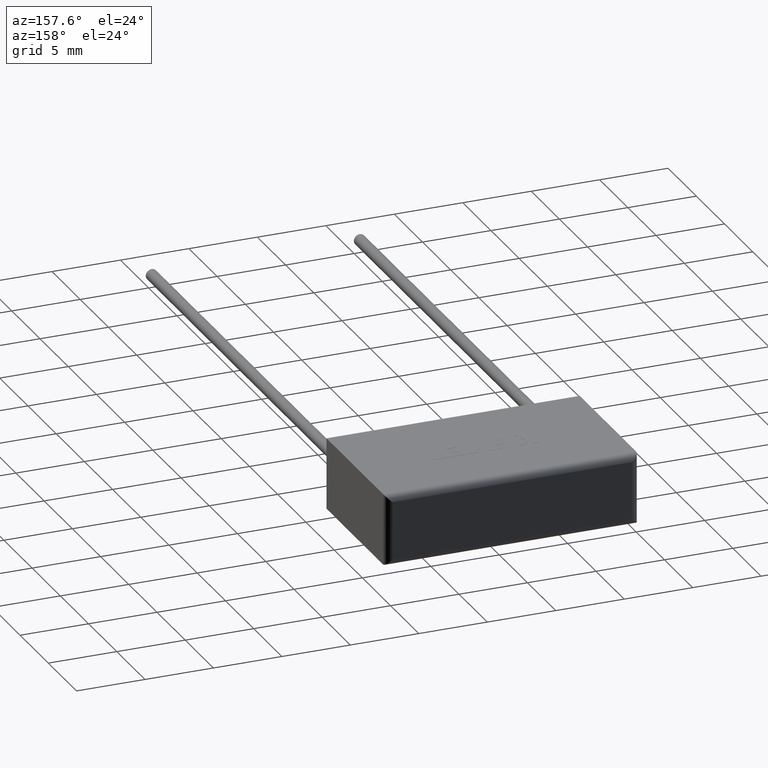
[diagram: clean part render]
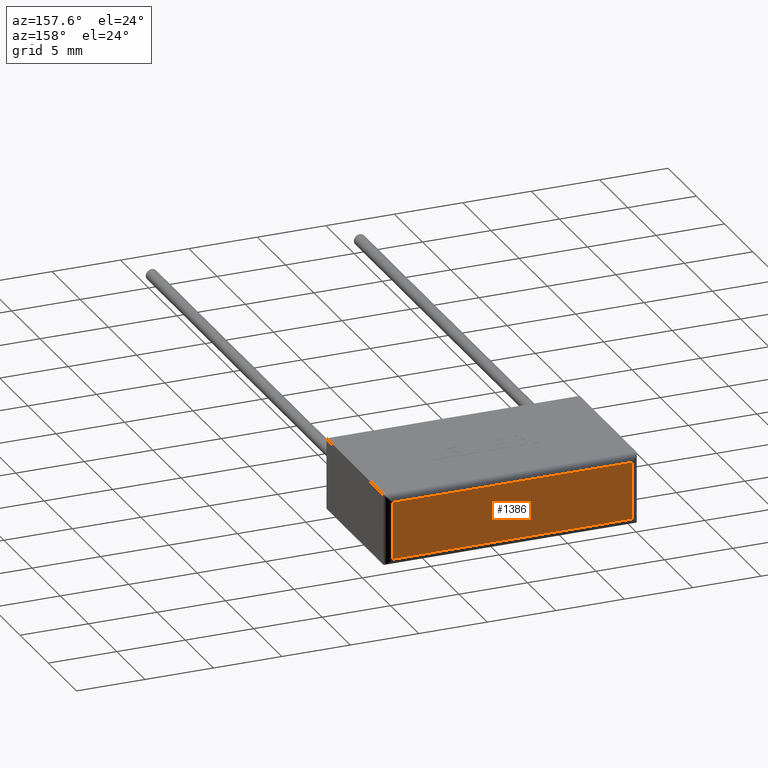
[diagram: same view with one face highlighted and labeled with its STEP entity id]
A machine part, auxiliary view. The second image highlights one B-rep face of the part: STEP entity #1386.
In plain terms, the highlighted planar face has unit normal (0, -1, 0).
Its self-contained STEP definition (entity closure, byte-faithful):
#138 = DIRECTION ( 'NONE',  ( -1.000000000000000000, 0.0000000000000000000, 0.0000000000000000000 ) ) ;
#309 = VERTEX_POINT ( 'NONE', #1914 ) ;
#310 = ORIENTED_EDGE ( 'NONE', *, *, #689, .T. ) ;
#385 = VERTEX_POINT ( 'NONE', #1619 ) ;
#388 = CARTESIAN_POINT ( 'NONE',  ( 18.00000000000000000, 10.50000000000000000, 4.699999999999999300 ) ) ;
#429 = LINE ( 'NONE', #2032, #1168 ) ;
#442 = VECTOR ( 'NONE', #1788, 1000.000000000000000 ) ;
#443 = ORIENTED_EDGE ( 'NONE', *, *, #1627, .T. ) ;
#453 = EDGE_CURVE ( 'NONE', #2300, #385, #2043, .T. ) ;
#548 = CARTESIAN_POINT ( 'NONE',  ( 0.0000000000000000000, 10.50000000000000000, 5.200000000000000200 ) ) ;
#560 = FACE_OUTER_BOUND ( 'NONE', #1789, .T. ) ;
#666 = CARTESIAN_POINT ( 'NONE',  ( 18.00000000000000000, 10.50000000000000000, 5.200000000000000200 ) ) ;
#689 = EDGE_CURVE ( 'NONE', #385, #951, #1588, .T. ) ;
#758 = LINE ( 'NONE', #2270, #2189 ) ;
#951 = VERTEX_POINT ( 'NONE', #1596 ) ;
#1168 = VECTOR ( 'NONE', #1843, 1000.000000000000000 ) ;
#1175 = VECTOR ( 'NONE', #138, 1000.000000000000000 ) ;
#1248 = PLANE ( 'NONE',  #1877 ) ;
#1386 = ADVANCED_FACE ( 'NONE', ( #560 ), #1248, .F. ) ;
#1569 = ORIENTED_EDGE ( 'NONE', *, *, #2302, .T. ) ;
#1588 = LINE ( 'NONE', #2276, #1175 ) ;
#1596 = CARTESIAN_POINT ( 'NONE',  ( 0.5000000000000000000, 10.50000000000000000, 0.5000000000000004400 ) ) ;
#1619 = CARTESIAN_POINT ( 'NONE',  ( 18.00000000000000000, 10.50000000000000000, 0.5000000000000004400 ) ) ;
#1627 = EDGE_CURVE ( 'NONE', #309, #2300, #429, .T. ) ;
#1730 = ORIENTED_EDGE ( 'NONE', *, *, #453, .T. ) ;
#1788 = DIRECTION ( 'NONE',  ( 0.0000000000000000000, 0.0000000000000000000, -1.000000000000000000 ) ) ;
#1789 = EDGE_LOOP ( 'NONE', ( #443, #1730, #310, #1569 ) ) ;
#1843 = DIRECTION ( 'NONE',  ( 1.000000000000000000, -0.0000000000000000000, -0.0000000000000000000 ) ) ;
#1870 = DIRECTION ( 'NONE',  ( 0.0000000000000000000, -1.000000000000000000, 0.0000000000000000000 ) ) ;
#1877 = AXIS2_PLACEMENT_3D ( 'NONE', #548, #1870, #2291 ) ;
#1914 = CARTESIAN_POINT ( 'NONE',  ( 0.5000000000000000000, 10.50000000000000000, 4.699999999999999300 ) ) ;
#2032 = CARTESIAN_POINT ( 'NONE',  ( 0.0000000000000000000, 10.50000000000000000, 4.699999999999999300 ) ) ;
#2043 = LINE ( 'NONE', #666, #442 ) ;
#2093 = DIRECTION ( 'NONE',  ( -0.0000000000000000000, -0.0000000000000000000, 1.000000000000000000 ) ) ;
#2189 = VECTOR ( 'NONE', #2093, 1000.000000000000000 ) ;
#2270 = CARTESIAN_POINT ( 'NONE',  ( 0.5000000000000000000, 10.50000000000000000, 5.200000000000000200 ) ) ;
#2276 = CARTESIAN_POINT ( 'NONE',  ( 0.0000000000000000000, 10.50000000000000000, 0.5000000000000004400 ) ) ;
#2291 = DIRECTION ( 'NONE',  ( 0.0000000000000000000, -0.0000000000000000000, -1.000000000000000000 ) ) ;
#2300 = VERTEX_POINT ( 'NONE', #388 ) ;
#2302 = EDGE_CURVE ( 'NONE', #951, #309, #758, .T. ) ;